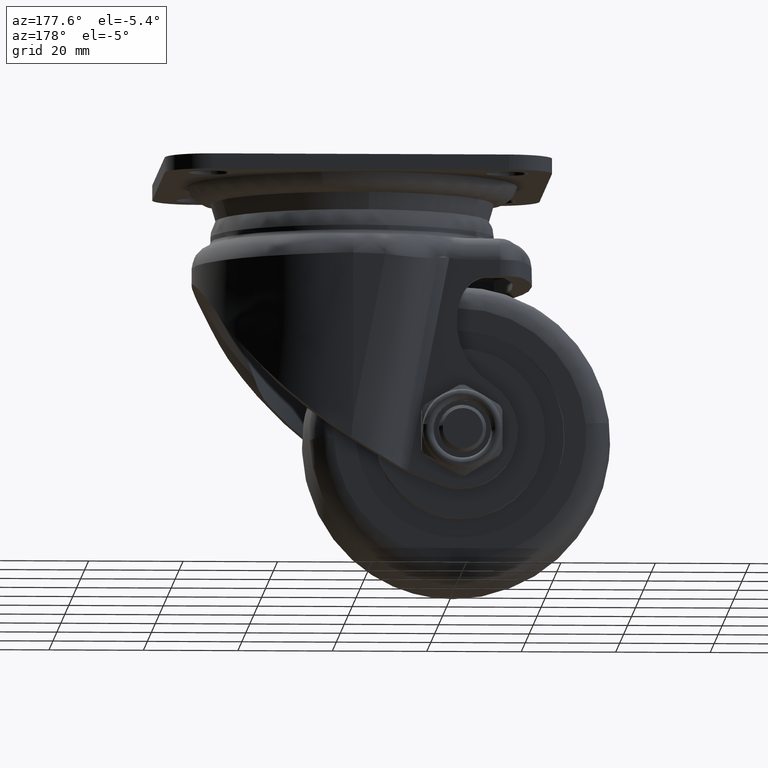
[diagram: clean part render]
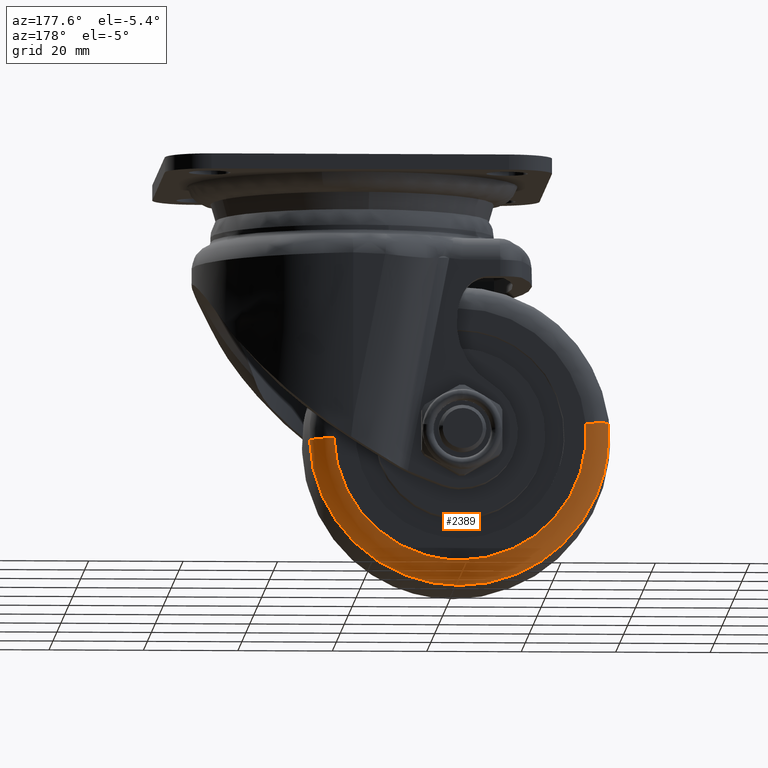
[diagram: same view with one face highlighted and labeled with its STEP entity id]
A machine part, auxiliary view. The second image highlights one B-rep face of the part: STEP entity #2389.
In plain terms, the highlighted face is a freeform B-spline surface patch.
Its self-contained STEP definition (entity closure, byte-faithful):
#2249=CARTESIAN_POINT('',(31.703529783561557,15.187853188845661,-58.474909416382275));
#2250=CARTESIAN_POINT('',(31.675628321838488,15.187853188845661,-59.382249942464092));
#2251=CARTESIAN_POINT('',(31.595879692004985,15.187853188845665,-60.286509572148198));
#2252=CARTESIAN_POINT('',(28.809370119856808,15.187853188845667,-91.882389264153147));
#2253=CARTESIAN_POINT('',(-2.786509572148172,15.187853188845665,-89.095879692004971));
#2254=CARTESIAN_POINT('',(-34.382389264153147,15.187853188845667,-86.309370119856808));
#2255=CARTESIAN_POINT('',(-31.595879692004985,15.187853188845665,-54.713490427851838));
#2256=CARTESIAN_POINT('',(31.510356819258359,20.328245741580432,-58.468969190067561));
#2257=CARTESIAN_POINT('',(31.482625364096272,20.328245741580414,-59.370781194238667));
#2258=CARTESIAN_POINT('',(31.403362651109546,20.328245741580421,-60.269531074240042));
#2259=CARTESIAN_POINT('',(28.633831576869522,20.328245741580425,-91.672893725349581));
#2260=CARTESIAN_POINT('',(-2.769531074240024,20.328245741580421,-88.903362651109532));
#2261=CARTESIAN_POINT('',(-34.172893725349560,20.328245741580425,-86.133831576869525));
#2262=CARTESIAN_POINT('',(-31.403362651109546,20.328245741580421,-54.730468925759986));
#2263=CARTESIAN_POINT('',(26.379948192474291,19.989122696849304,-58.311204937497365));
#2264=CARTESIAN_POINT('',(26.356731878083625,19.989122696849293,-59.066186992630591));
#2265=CARTESIAN_POINT('',(26.290374449185610,19.989122696849289,-59.818605488188169));
#2266=CARTESIAN_POINT('',(23.971768960997448,19.989122696849297,-86.108979937373775));
#2267=CARTESIAN_POINT('',(-2.318605488188154,19.989122696849289,-83.790374449185606));
#2268=CARTESIAN_POINT('',(-28.608979937373761,19.989122696849297,-81.471768960997437));
#2269=CARTESIAN_POINT('',(-26.290374449185610,19.989122696849289,-55.181394511811845));
#2277=(BOUNDED_SURFACE()B_SPLINE_SURFACE(2,2,((#2249,#2256,#2263),(#2250,#2257,#2264),(#2251,#2258,#2265),(#2252,#2259,#2266),(#2253,#2260,#2267),(#2254,#2261,#2268),(#2255,#2262,#2269)),.UNSPECIFIED.,.F.,.F.,.U.)B_SPLINE_SURFACE_WITH_KNOTS((3,2,2,3),(3,3),(0.0,2.102116307652684,54.655074117375896,107.208031927099100),(0.0,8.451091711510374),.UNSPECIFIED.)GEOMETRIC_REPRESENTATION_ITEM()RATIONAL_B_SPLINE_SURFACE(((0.895620040554113,0.624643234840056,0.896764440386390),(0.905495588634832,0.631530859077609,0.906652607183814),(0.916229879136742,0.639017406541060,0.917400613681005),(0.647872360663321,0.451853541461424,0.648700194998539),(0.916229879136742,0.639017406541060,0.917400613681005),(0.647872360663321,0.451853541461424,0.648700194998539),(0.916229879136742,0.639017406541060,0.917400613681005)))REPRESENTATION_ITEM('')SURFACE());
#2278=CARTESIAN_POINT('',(26.709420645994179,20.0,-58.321335008879942));
#2279=VERTEX_POINT('',#2278);
#2280=CARTESIAN_POINT('',(0.0,20.0,-84.222046000000205));
#2281=VERTEX_POINT('',#2280);
#2282=CARTESIAN_POINT('',(26.709420645994172,20.000000000000004,-58.321335008879942));
#2283=CARTESIAN_POINT('',(25.912954074084727,19.999999999999993,-84.222046000000205));
#2284=CARTESIAN_POINT('',(0.0,20.0,-84.222046000000205));
#2292=(BOUNDED_CURVE()B_SPLINE_CURVE(2,(#2282,#2283,#2284),.UNSPECIFIED.,.F.,.U.)B_SPLINE_CURVE_WITH_KNOTS((3,3),(0.255400348391110,0.500000000000000),.UNSPECIFIED.)CURVE()GEOMETRIC_REPRESENTATION_ITEM()RATIONAL_B_SPLINE_CURVE((0.987619536403091,0.713433682878493,1.0))REPRESENTATION_ITEM(''));
#2293=EDGE_CURVE('',#2279,#2281,#2292,.T.);
#2294=ORIENTED_EDGE('',*,*,#2293,.F.);
#2295=CARTESIAN_POINT('',(31.680247499074412,15.517244009141869,-58.474191717110287));
#2296=VERTEX_POINT('',#2295);
#2297=CARTESIAN_POINT('',(31.680247499074412,15.517244009141871,-58.474191717110280));
#2298=CARTESIAN_POINT('',(31.214229499145716,20.000000134712632,-58.459861308983079));
#2299=CARTESIAN_POINT('',(26.709420645994179,20.0,-58.321335008879934));
#2307=(BOUNDED_CURVE()B_SPLINE_CURVE(2,(#2297,#2298,#2299),.UNSPECIFIED.,.F.,.U.)B_SPLINE_CURVE_WITH_KNOTS((3,3),(-1.717347613974827,-0.279319866158417),.UNSPECIFIED.)CURVE()GEOMETRIC_REPRESENTATION_ITEM()RATIONAL_B_SPLINE_CURVE((0.872128262498350,0.648187008290278,0.873168607045535))REPRESENTATION_ITEM(''));
#2308=EDGE_CURVE('',#2296,#2279,#2307,.T.);
#2309=ORIENTED_EDGE('',*,*,#2308,.F.);
#2310=CARTESIAN_POINT('',(0.0,15.517246504561850,-89.195224658554821));
#2311=VERTEX_POINT('',#2310);
#2312=CARTESIAN_POINT('',(31.680247499074408,15.517244009141869,-58.474191717110287));
#2313=CARTESIAN_POINT('',(30.735553415805661,15.517246369341187,-89.195224618591340));
#2314=CARTESIAN_POINT('',(0.0,15.517246504561850,-89.195224658554821));
#2322=(BOUNDED_CURVE()B_SPLINE_CURVE(2,(#2312,#2313,#2314),.UNSPECIFIED.,.F.,.U.)B_SPLINE_CURVE_WITH_KNOTS((3,3),(0.255400349746240,0.500000000000000),.UNSPECIFIED.)CURVE()GEOMETRIC_REPRESENTATION_ITEM()RATIONAL_B_SPLINE_CURVE((0.987619533365006,0.713433684466126,1.0))REPRESENTATION_ITEM(''));
#2323=EDGE_CURVE('',#2296,#2311,#2322,.T.);
#2324=ORIENTED_EDGE('',*,*,#2323,.T.);
#2325=CARTESIAN_POINT('',(-31.483239876195750,15.517261947292409,-61.159613536615502));
#2326=VERTEX_POINT('',#2325);
#2327=CARTESIAN_POINT('',(0.0,15.517246504561850,-89.195224658554821));
#2328=CARTESIAN_POINT('',(-28.224379903130821,15.517254225927136,-89.195224777011049));
#2329=CARTESIAN_POINT('',(-31.483239876195750,15.517261947292416,-61.159613536615495));
#2337=(BOUNDED_CURVE()B_SPLINE_CURVE(2,(#2327,#2328,#2329),.UNSPECIFIED.,.F.,.U.)B_SPLINE_CURVE_WITH_KNOTS((3,3),(0.500000000000000,0.730000273836047),.UNSPECIFIED.)CURVE()GEOMETRIC_REPRESENTATION_ITEM()RATIONAL_B_SPLINE_CURVE((1.0,0.730537917872739,0.956886657167089))REPRESENTATION_ITEM(''));
#2338=EDGE_CURVE('',#2311,#2326,#2337,.T.);
#2339=ORIENTED_EDGE('',*,*,#2338,.T.);
#2340=CARTESIAN_POINT('',(-31.572674686826758,15.517259675710109,-54.715536927853229));
#2341=VERTEX_POINT('',#2340);
#2342=CARTESIAN_POINT('',(-31.483239876195750,15.517261947292416,-61.159613536615495));
#2343=CARTESIAN_POINT('',(-31.695222413474166,15.517261356867531,-59.335946281442354));
#2344=CARTESIAN_POINT('',(-31.695221763597161,15.517260702526681,-57.499999897468378));
#2345=CARTESIAN_POINT('',(-31.695221269829073,15.517260205367029,-56.105071744487340));
#2346=CARTESIAN_POINT('',(-31.572674686826755,15.517259675710108,-54.715536927853229));
#2354=(BOUNDED_CURVE()B_SPLINE_CURVE(2,(#2342,#2343,#2344,#2345,#2346),.UNSPECIFIED.,.F.,.U.)B_SPLINE_CURVE_WITH_KNOTS((3,2,3),(0.730000273836047,0.750000000000000,0.765281543100479),.UNSPECIFIED.)CURVE()GEOMETRIC_REPRESENTATION_ITEM()RATIONAL_B_SPLINE_CURVE((0.956886657167089,0.976568863313808,1.0,0.982096558611456,0.966381854912720))REPRESENTATION_ITEM(''));
#2355=EDGE_CURVE('',#2326,#2341,#2354,.T.);
#2356=ORIENTED_EDGE('',*,*,#2355,.T.);
#2357=CARTESIAN_POINT('',(-26.618728129079219,20.0,-55.152436283977870));
#2358=VERTEX_POINT('',#2357);
#2359=CARTESIAN_POINT('',(-31.572674686826755,15.517259675710116,-54.715536927853229));
#2360=CARTESIAN_POINT('',(-31.108226506839934,20.000000123871917,-54.756497626121245));
#2361=CARTESIAN_POINT('',(-26.618728129079216,20.0,-55.152436283977870));
#2369=(BOUNDED_CURVE()B_SPLINE_CURVE(2,(#2359,#2360,#2361),.UNSPECIFIED.,.F.,.U.)B_SPLINE_CURVE_WITH_KNOTS((3,3),(-1.717344230752976,-0.279319867518745),.UNSPECIFIED.)CURVE()GEOMETRIC_REPRESENTATION_ITEM()RATIONAL_B_SPLINE_CURVE((0.892196453531381,0.663103520495737,0.893261815847669))REPRESENTATION_ITEM(''));
#2370=EDGE_CURVE('',#2341,#2358,#2369,.T.);
#2371=ORIENTED_EDGE('',*,*,#2370,.T.);
#2372=CARTESIAN_POINT('',(0.0,20.0,-84.222046000000205));
#2373=CARTESIAN_POINT('',(-26.722046000000198,19.999999999999996,-84.222046000000205));
#2374=CARTESIAN_POINT('',(-26.722046000000201,20.0,-57.500000000000000));
#2375=CARTESIAN_POINT('',(-26.722046000000198,19.999999999999996,-56.323944597043322));
#2376=CARTESIAN_POINT('',(-26.618728129079219,20.0,-55.152436283977870));
#2384=(BOUNDED_CURVE()B_SPLINE_CURVE(2,(#2372,#2373,#2374,#2375,#2376),.UNSPECIFIED.,.F.,.U.)B_SPLINE_CURVE_WITH_KNOTS((3,2,3),(0.500000000000000,0.750000000000000,0.765281545148255),.UNSPECIFIED.)CURVE()GEOMETRIC_REPRESENTATION_ITEM()RATIONAL_B_SPLINE_CURVE((1.0,0.707106781186548,1.0,0.982096556212338,0.966381850701080))REPRESENTATION_ITEM(''));
#2385=EDGE_CURVE('',#2281,#2358,#2384,.T.);
#2386=ORIENTED_EDGE('',*,*,#2385,.F.);
#2387=EDGE_LOOP('',(#2294,#2309,#2324,#2339,#2356,#2371,#2386));
#2388=FACE_OUTER_BOUND('',#2387,.T.);
#2389=ADVANCED_FACE('',(#2388),#2277,.T.);